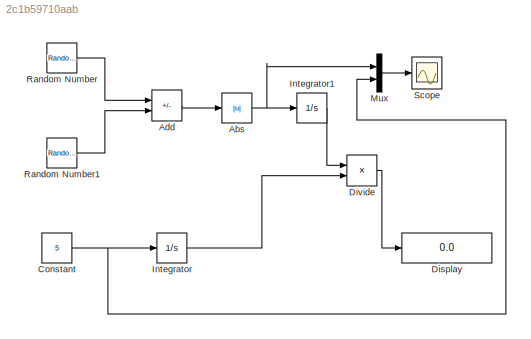
MODEL slx_2c1b59710aab
KIND model
CONFIG AbsTol = auto
CONFIG EnableMultiTasking = off
CONFIG FixedStep = auto
CONFIG MaxStep = auto
CONFIG MinStep = auto
CONFIG RelTol = 1e-3
CONFIG SampleTimeConstraint = Unconstrained
CONFIG SolverName = VariableStepAuto
CONFIG StartTime = 0.0
CONFIG StopTime = 20
BLOCK [Abs] Abs
  SaturateOnIntegerOverflow = off
BLOCK [Sum] Add
  IconShape = rectangular
  Inputs = +-
BLOCK [Constant] Constant
  Value = 5
BLOCK [Display] Display
  Decimation = 1
BLOCK [Product] Divide
  Inputs = */
BLOCK [Integrator] Integrator
BLOCK [Integrator] Integrator1
BLOCK [Mux] Mux
  DisplayOption = bar
  Inputs = 2
BLOCK [RandomNumber] Random Number
  Mean = 15
  SampleTime = 0.1
  Variance = 3
BLOCK [RandomNumber] Random Number1
  Mean = 10
  SampleTime = 0.1
  Variance = 2
BLOCK [Scope] Scope
  ActiveDisplayYMaximum = 5.6578783011741312
  ActiveDisplayYMinimum = 4.5698032026447679
  Floating = off
  GraphicalSettings = {"AxesScalingProperties":{"AlignXAxis":"Center","AlignYAxis":"Center","AutoScaleXAxisLimits":false,"AxesScaling":"Manual","AxesScalingNumUpdates":10,"ExpandOnly":true,"ScaleAxesLimitsAtStop":false,"XAxisDataRange":100,"YAxisDataRange":80},"DisplayProperties":{"ColorOrder":["auto","auto","auto","auto","auto","auto","auto","auto","auto","auto","auto","auto","auto","auto","auto","auto","auto","auto",...<+2136ch>
  MultipleDisplayCache = [{"MaxYLimMag":6.0316179918338255,"MaxYLimReal":5.6578783011741312,"MinYLimMag":3.8708565012583231,"MinYLimReal":4.5698032026447679,"PlotAsMagnitudePhase":false,"ShowGrid":true,"ShowLegend":false,"Title":"%<SignalLabel>","YLabel":""}]
  NumInputPorts = 1
  ScopeFrameLocation = window
  WasSavedAsWebScope = on
  WindowPosition = [1116.000000,198.000000,560.000000,420.000000,]
NET Abs:1 -> Integrator1:1, Mux:1
LINE Add:1 -> Abs:1
NET Constant:1 -> Integrator:1, Mux:2
LINE Divide:1 -> Display:1
LINE Integrator1:1 -> Divide:1
LINE Integrator:1 -> Divide:2
LINE Mux:1 -> Scope:1
LINE Random Number1:1 -> Add:2
LINE Random Number:1 -> Add:1
note: NET lines group one-source signal fan-out (src -> all destinations, sorted); 1:1 wires keep LINE
